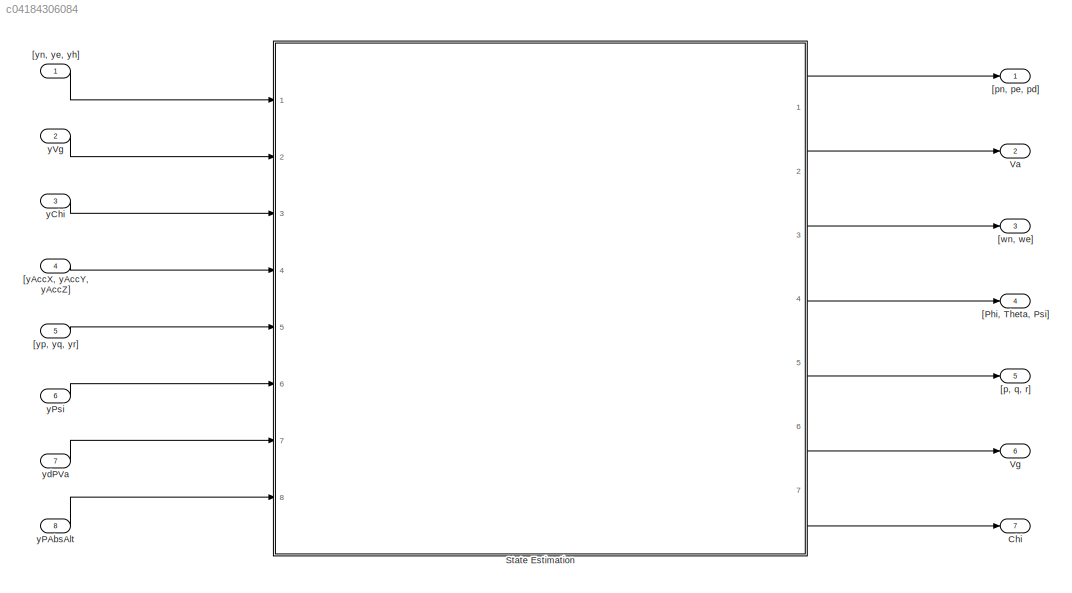
MODEL slx_c04184306084
KIND model
CONFIG AbsTol = auto
CONFIG EnableMultiTasking = off
CONFIG FixedStep = auto
CONFIG MaxStep = auto
CONFIG MinStep = auto
CONFIG RelTol = 1e-3
CONFIG SampleTimeConstraint = Unconstrained
CONFIG Solver = VariableStepAuto
CONFIG SolverName = VariableStepAuto
CONFIG StartTime = 0.0
CONFIG StopTime = 10.0
BLOCK [Outport] Chi
  IconDisplay = Port number
  Port = 7
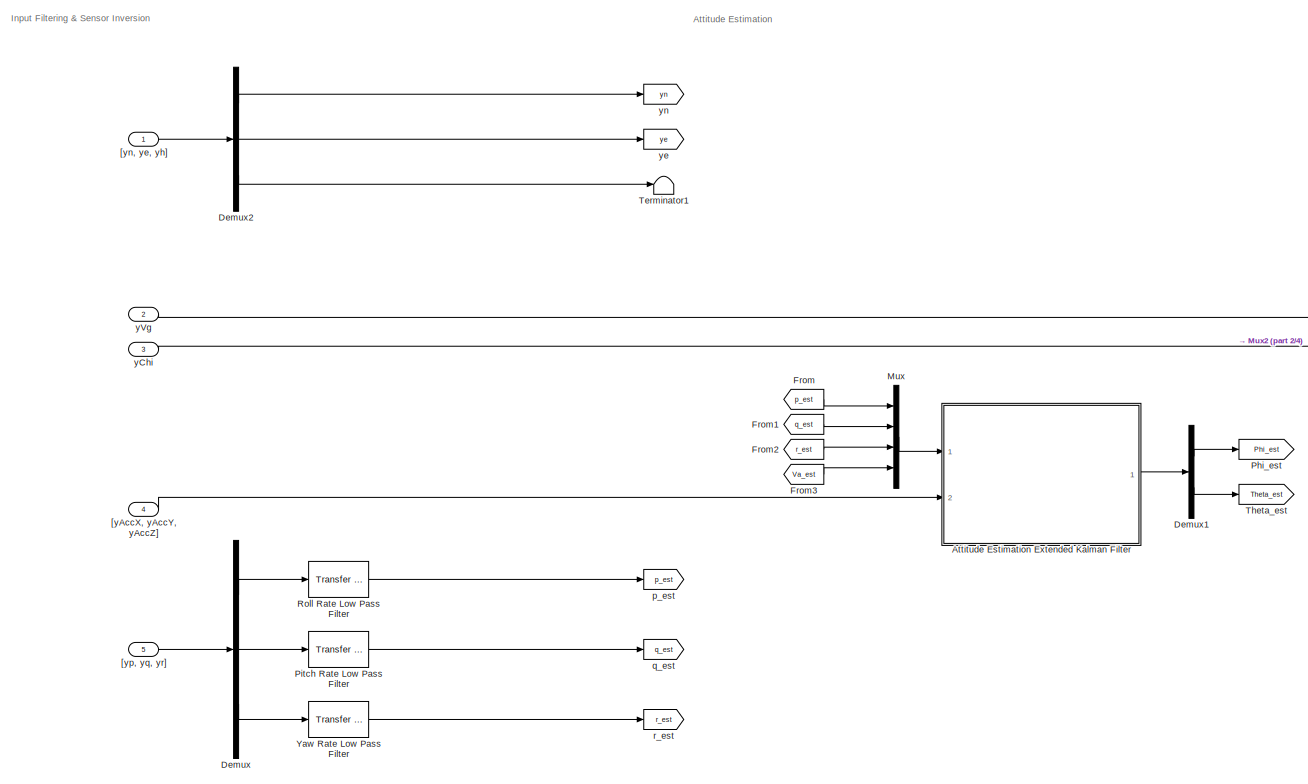
[diagram: State Estimation - part 1/4, top left region]
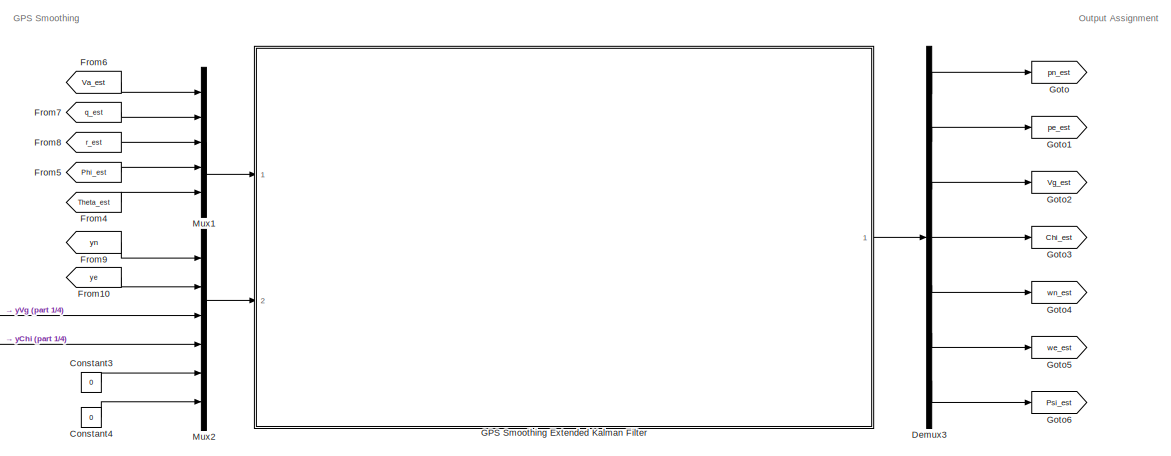
[diagram: State Estimation - part 2/4, top center region]
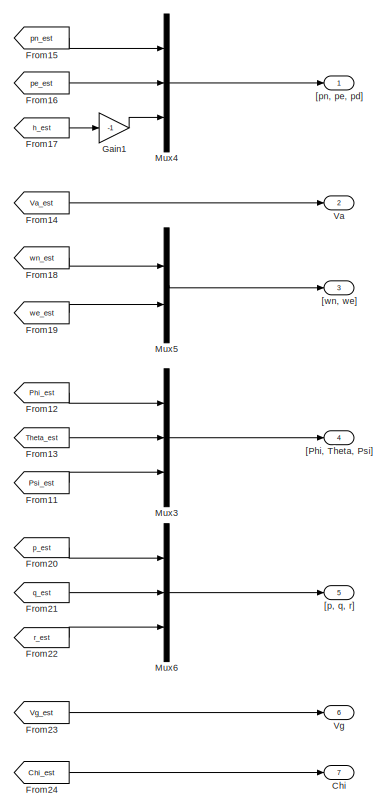
[diagram: State Estimation - part 3/4, middle right region]
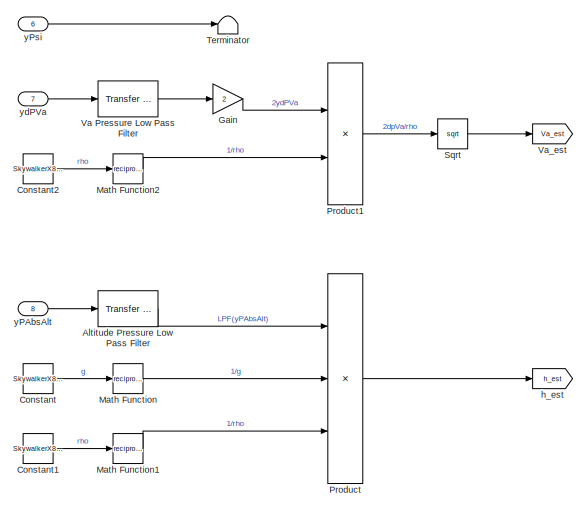
[diagram: State Estimation - part 4/4, bottom left region]
BLOCK [SubSystem] State Estimation
  Ports = [8, 7]
  RequestExecContextInheritance = off
BLOCK [Reference] State Estimation/Altitude Pressure Low Pass Filter  REF=simulink_extras/Additional
Linear/Transfer Fcn
(with initial outputs)
  Ports = [1, 1]
  SourceBlock = simulink_extras/Additional\nLinear/Transfer Fcn\n(with initial outputs)
  SourceProductBaseCode = SL
  SourceProductName = Simulink
  SourceType = Transfer Function with Initial Outputs
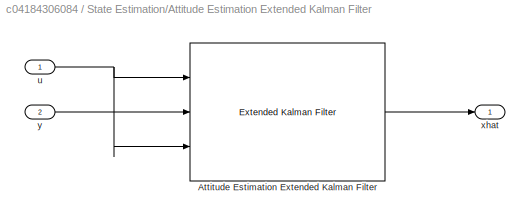
BLOCK [SubSystem] State Estimation/Attitude Estimation Extended Kalman Filter
  Ports = [2, 1]
  RequestExecContextInheritance = off
BLOCK [Reference] State Estimation/Attitude Estimation Extended Kalman Filter/Attitude Estimation Extended Kalman Filter  REF=sharedTrackingLibrary/Extended Kalman Filter
  Ports = [3, 1]
  SourceBlock = sharedTrackingLibrary/Extended Kalman Filter
  SourceProductBaseCode = CT
  SourceProductName = Control System Toolbox
  SourceType = Extended Kalman Filter
BLOCK [Inport] State Estimation/Attitude Estimation Extended Kalman Filter/u
  IconDisplay = Port number
BLOCK [Outport] State Estimation/Attitude Estimation Extended Kalman Filter/xhat
  IconDisplay = Port number
BLOCK [Inport] State Estimation/Attitude Estimation Extended Kalman Filter/y
  IconDisplay = Port number
  Port = 2
BLOCK [Outport] State Estimation/Chi
  IconDisplay = Port number
  Port = 7
BLOCK [Constant] State Estimation/Constant
  Value = SkywalkerX8.Sensors.StateEstimate.SensorInversion.AltitudePressure.Gravity
BLOCK [Constant] State Estimation/Constant1
  Value = SkywalkerX8.Sensors.StateEstimate.SensorInversion.AltitudePressure.Density
BLOCK [Constant] State Estimation/Constant2
  Value = SkywalkerX8.Sensors.StateEstimate.SensorInversion.AltitudePressure.Density
BLOCK [Constant] State Estimation/Constant3
  Value = 0
BLOCK [Constant] State Estimation/Constant4
  Value = 0
BLOCK [Demux] State Estimation/Demux
  DisplayOption = bar
  Outputs = 3
  Ports = [1, 3]
BLOCK [Demux] State Estimation/Demux1
  DisplayOption = bar
  Outputs = 2
  Ports = [1, 2]
BLOCK [Demux] State Estimation/Demux2
  DisplayOption = bar
  Outputs = 3
  Ports = [1, 3]
BLOCK [Demux] State Estimation/Demux3
  DisplayOption = bar
  Outputs = 7
  Ports = [1, 7]
BLOCK [From] State Estimation/From
  GotoTag = p_est
BLOCK [From] State Estimation/From1
  GotoTag = q_est
BLOCK [From] State Estimation/From10
  GotoTag = ye
BLOCK [From] State Estimation/From11
  GotoTag = Psi_est
BLOCK [From] State Estimation/From12
  GotoTag = Phi_est
BLOCK [From] State Estimation/From13
  GotoTag = Theta_est
BLOCK [From] State Estimation/From14
  GotoTag = Va_est
BLOCK [From] State Estimation/From15
  GotoTag = pn_est
BLOCK [From] State Estimation/From16
  GotoTag = pe_est
BLOCK [From] State Estimation/From17
  GotoTag = h_est
BLOCK [From] State Estimation/From18
  GotoTag = wn_est
BLOCK [From] State Estimation/From19
  GotoTag = we_est
BLOCK [From] State Estimation/From2
  GotoTag = r_est
BLOCK [From] State Estimation/From20
  GotoTag = p_est
BLOCK [From] State Estimation/From21
  GotoTag = q_est
BLOCK [From] State Estimation/From22
  GotoTag = r_est
BLOCK [From] State Estimation/From23
  GotoTag = Vg_est
BLOCK [From] State Estimation/From24
  GotoTag = Chi_est
BLOCK [From] State Estimation/From3
  GotoTag = Va_est
BLOCK [From] State Estimation/From4
  GotoTag = Theta_est
BLOCK [From] State Estimation/From5
  GotoTag = Phi_est
BLOCK [From] State Estimation/From6
  GotoTag = Va_est
BLOCK [From] State Estimation/From7
  GotoTag = q_est
BLOCK [From] State Estimation/From8
  GotoTag = r_est
BLOCK [From] State Estimation/From9
  GotoTag = yn
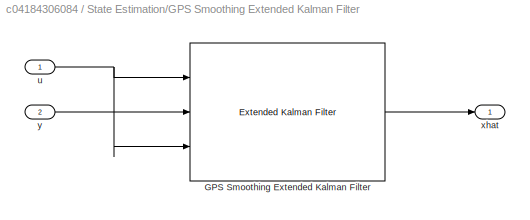
BLOCK [SubSystem] State Estimation/GPS Smoothing Extended Kalman Filter
  Ports = [2, 1]
  RequestExecContextInheritance = off
BLOCK [Reference] State Estimation/GPS Smoothing Extended Kalman Filter/GPS Smoothing Extended Kalman Filter  REF=sharedTrackingLibrary/Extended Kalman Filter
  Ports = [3, 1]
  SourceBlock = sharedTrackingLibrary/Extended Kalman Filter
  SourceProductBaseCode = CT
  SourceProductName = Control System Toolbox
  SourceType = Extended Kalman Filter
BLOCK [Inport] State Estimation/GPS Smoothing Extended Kalman Filter/u
  IconDisplay = Port number
BLOCK [Outport] State Estimation/GPS Smoothing Extended Kalman Filter/xhat
  IconDisplay = Port number
BLOCK [Inport] State Estimation/GPS Smoothing Extended Kalman Filter/y
  IconDisplay = Port number
  Port = 2
BLOCK [Gain] State Estimation/Gain
  Gain = 2
  OutDataTypeStr = Inherit: Inherit via internal rule
  ParamDataTypeStr = Inherit: Inherit via internal rule
  SaturateOnIntegerOverflow = off
BLOCK [Gain] State Estimation/Gain1
  Gain = -1
  OutDataTypeStr = Inherit: Inherit via internal rule
  ParamDataTypeStr = Inherit: Inherit via internal rule
  SaturateOnIntegerOverflow = off
BLOCK [Goto] State Estimation/Goto
  GotoTag = pn_est
BLOCK [Goto] State Estimation/Goto1
  GotoTag = pe_est
BLOCK [Goto] State Estimation/Goto2
  GotoTag = Vg_est
BLOCK [Goto] State Estimation/Goto3
  GotoTag = Chi_est
BLOCK [Goto] State Estimation/Goto4
  GotoTag = wn_est
BLOCK [Goto] State Estimation/Goto5
  GotoTag = we_est
BLOCK [Goto] State Estimation/Goto6
  GotoTag = Psi_est
BLOCK [Math] State Estimation/Math Function
  Operator = reciprocal
  Ports = [1, 1]
BLOCK [Math] State Estimation/Math Function1
  Operator = reciprocal
  Ports = [1, 1]
BLOCK [Math] State Estimation/Math Function2
  Operator = reciprocal
  Ports = [1, 1]
BLOCK [Mux] State Estimation/Mux
  DisplayOption = bar
  Ports = [4, 1]
BLOCK [Mux] State Estimation/Mux1
  DisplayOption = bar
  Inputs = 5
  Ports = [5, 1]
BLOCK [Mux] State Estimation/Mux2
  DisplayOption = bar
  Inputs = 6
  Ports = [6, 1]
BLOCK [Mux] State Estimation/Mux3
  DisplayOption = bar
  Inputs = 3
  Ports = [3, 1]
BLOCK [Mux] State Estimation/Mux4
  DisplayOption = bar
  Inputs = 3
  Ports = [3, 1]
BLOCK [Mux] State Estimation/Mux5
  DisplayOption = bar
  Inputs = 2
  Ports = [2, 1]
BLOCK [Mux] State Estimation/Mux6
  DisplayOption = bar
  Inputs = 3
  Ports = [3, 1]
BLOCK [Goto] State Estimation/Phi_est
  GotoTag = Phi_est
BLOCK [Reference] State Estimation/Pitch Rate Low Pass Filter  REF=simulink_extras/Additional
Linear/Transfer Fcn
(with initial outputs)
  Ports = [1, 1]
  SourceBlock = simulink_extras/Additional\nLinear/Transfer Fcn\n(with initial outputs)
  SourceProductBaseCode = SL
  SourceProductName = Simulink
  SourceType = Transfer Function with Initial Outputs
BLOCK [Product] State Estimation/Product
  InputSameDT = off
  Inputs = 3
  OutDataTypeStr = Inherit: Inherit via internal rule
  Ports = [3, 1]
  RndMeth = Floor
  SaturateOnIntegerOverflow = off
BLOCK [Product] State Estimation/Product1
  InputSameDT = off
  OutDataTypeStr = Inherit: Inherit via internal rule
  Ports = [2, 1]
  RndMeth = Floor
  SaturateOnIntegerOverflow = off
BLOCK [Reference] State Estimation/Roll Rate Low Pass Filter  REF=simulink_extras/Additional
Linear/Transfer Fcn
(with initial outputs)
  Ports = [1, 1]
  SourceBlock = simulink_extras/Additional\nLinear/Transfer Fcn\n(with initial outputs)
  SourceProductBaseCode = SL
  SourceProductName = Simulink
  SourceType = Transfer Function with Initial Outputs
BLOCK [Sqrt] State Estimation/Sqrt
BLOCK [Terminator] State Estimation/Terminator
BLOCK [Terminator] State Estimation/Terminator1
BLOCK [Goto] State Estimation/Theta_est
  GotoTag = Theta_est
BLOCK [Outport] State Estimation/Va
  IconDisplay = Port number
  Port = 2
BLOCK [Reference] State Estimation/Va Pressure Low Pass Filter  REF=simulink_extras/Additional
Linear/Transfer Fcn
(with initial outputs)
  Ports = [1, 1]
  SourceBlock = simulink_extras/Additional\nLinear/Transfer Fcn\n(with initial outputs)
  SourceProductBaseCode = SL
  SourceProductName = Simulink
  SourceType = Transfer Function with Initial Outputs
BLOCK [Goto] State Estimation/Va_est
  GotoTag = Va_est
BLOCK [Outport] State Estimation/Vg
  IconDisplay = Port number
  Port = 6
BLOCK [Reference] State Estimation/Yaw Rate Low Pass Filter  REF=simulink_extras/Additional
Linear/Transfer Fcn
(with initial outputs)
  Ports = [1, 1]
  SourceBlock = simulink_extras/Additional\nLinear/Transfer Fcn\n(with initial outputs)
  SourceProductBaseCode = SL
  SourceProductName = Simulink
  SourceType = Transfer Function with Initial Outputs
BLOCK [Outport] State Estimation/[Phi, Theta, Psi]
  IconDisplay = Port number
  Port = 4
BLOCK [Outport] State Estimation/[p, q, r]
  IconDisplay = Port number
  Port = 5
BLOCK [Outport] State Estimation/[pn, pe, pd]
  IconDisplay = Port number
BLOCK [Outport] State Estimation/[wn, we]
  IconDisplay = Port number
  Port = 3
BLOCK [Inport] State Estimation/[yAccX, yAccY, yAccZ]
  IconDisplay = Port number
  Port = 4
  PortDimensions = 3
BLOCK [Inport] State Estimation/[yn, ye, yh]
  IconDisplay = Port number
  PortDimensions = 3
BLOCK [Inport] State Estimation/[yp, yq, yr]
  IconDisplay = Port number
  Port = 5
  PortDimensions = 3
BLOCK [Goto] State Estimation/h_est
  GotoTag = h_est
BLOCK [Goto] State Estimation/p_est
  GotoTag = p_est
BLOCK [Goto] State Estimation/q_est
  GotoTag = q_est
BLOCK [Goto] State Estimation/r_est
  GotoTag = r_est
BLOCK [Inport] State Estimation/yChi
  IconDisplay = Port number
  Port = 3
  PortDimensions = 3
BLOCK [Inport] State Estimation/yPAbsAlt
  IconDisplay = Port number
  Port = 8
  PortDimensions = 3
BLOCK [Inport] State Estimation/yPsi
  IconDisplay = Port number
  Port = 6
  PortDimensions = 3
BLOCK [Inport] State Estimation/yVg
  IconDisplay = Port number
  Port = 2
  PortDimensions = 3
BLOCK [Inport] State Estimation/ydPVa
  IconDisplay = Port number
  Port = 7
  PortDimensions = 3
BLOCK [Goto] State Estimation/ye
  GotoTag = ye
BLOCK [Goto] State Estimation/yn
  GotoTag = yn
BLOCK [Outport] Va
  IconDisplay = Port number
  Port = 2
BLOCK [Outport] Vg
  IconDisplay = Port number
  Port = 6
BLOCK [Outport] [Phi, Theta, Psi]
  IconDisplay = Port number
  Port = 4
BLOCK [Outport] [p, q, r]
  IconDisplay = Port number
  Port = 5
BLOCK [Outport] [pn, pe, pd]
  IconDisplay = Port number
BLOCK [Outport] [wn, we]
  IconDisplay = Port number
  Port = 3
BLOCK [Inport] [yAccX, yAccY, yAccZ]
  IconDisplay = Port number
  Port = 4
  PortDimensions = 3
BLOCK [Inport] [yn, ye, yh]
  IconDisplay = Port number
  PortDimensions = 3
BLOCK [Inport] [yp, yq, yr]
  IconDisplay = Port number
  Port = 5
  PortDimensions = 3
BLOCK [Inport] yChi
  IconDisplay = Port number
  Port = 3
  PortDimensions = 3
BLOCK [Inport] yPAbsAlt
  IconDisplay = Port number
  Port = 8
  PortDimensions = 3
BLOCK [Inport] yPsi
  IconDisplay = Port number
  Port = 6
  PortDimensions = 3
BLOCK [Inport] yVg
  IconDisplay = Port number
  Port = 2
  PortDimensions = 3
BLOCK [Inport] ydPVa
  IconDisplay = Port number
  Port = 7
  PortDimensions = 3
ANNOTATION State Estimation: Attitude Estimation
ANNOTATION State Estimation: GPS Smoothing
ANNOTATION State Estimation: Input Filtering & Sensor Inversion
ANNOTATION State Estimation: Output Assignment
LINE State Estimation/Altitude Pressure Low Pass Filter:1 -> State Estimation/Product:1
LINE State Estimation/Attitude Estimation Extended Kalman Filter/Attitude Estimation Extended Kalman Filter:1 -> State Estimation/Attitude Estimation Extended Kalman Filter/xhat:1
NET State Estimation/Attitude Estimation Extended Kalman Filter/u:1 -> State Estimation/Attitude Estimation Extended Kalman Filter/Attitude Estimation Extended Kalman Filter:1, State Estimation/Attitude Estimation Extended Kalman Filter/Attitude Estimation Extended Kalman Filter:3
LINE State Estimation/Attitude Estimation Extended Kalman Filter/y:1 -> State Estimation/Attitude Estimation Extended Kalman Filter/Attitude Estimation Extended Kalman Filter:2
LINE State Estimation/Attitude Estimation Extended Kalman Filter:1 -> State Estimation/Demux1:1
LINE State Estimation/Constant1:1 -> State Estimation/Math Function1:1
LINE State Estimation/Constant2:1 -> State Estimation/Math Function2:1
LINE State Estimation/Constant3:1 -> State Estimation/Mux2:5
LINE State Estimation/Constant4:1 -> State Estimation/Mux2:6
LINE State Estimation/Constant:1 -> State Estimation/Math Function:1
LINE State Estimation/Demux1:1 -> State Estimation/Phi_est:1
LINE State Estimation/Demux1:2 -> State Estimation/Theta_est:1
LINE State Estimation/Demux2:1 -> State Estimation/yn:1
LINE State Estimation/Demux2:2 -> State Estimation/ye:1
LINE State Estimation/Demux2:3 -> State Estimation/Terminator1:1
LINE State Estimation/Demux3:1 -> State Estimation/Goto:1
LINE State Estimation/Demux3:2 -> State Estimation/Goto1:1
LINE State Estimation/Demux3:3 -> State Estimation/Goto2:1
LINE State Estimation/Demux3:4 -> State Estimation/Goto3:1
LINE State Estimation/Demux3:5 -> State Estimation/Goto4:1
LINE State Estimation/Demux3:6 -> State Estimation/Goto5:1
LINE State Estimation/Demux3:7 -> State Estimation/Goto6:1
LINE State Estimation/Demux:1 -> State Estimation/Roll Rate Low Pass Filter:1
LINE State Estimation/Demux:2 -> State Estimation/Pitch Rate Low Pass Filter:1
LINE State Estimation/Demux:3 -> State Estimation/Yaw Rate Low Pass Filter:1
LINE State Estimation/From10:1 -> State Estimation/Mux2:2
LINE State Estimation/From11:1 -> State Estimation/Mux3:3
LINE State Estimation/From12:1 -> State Estimation/Mux3:1
LINE State Estimation/From13:1 -> State Estimation/Mux3:2
LINE State Estimation/From14:1 -> State Estimation/Va:1
LINE State Estimation/From15:1 -> State Estimation/Mux4:1
LINE State Estimation/From16:1 -> State Estimation/Mux4:2
LINE State Estimation/From17:1 -> State Estimation/Gain1:1
LINE State Estimation/From18:1 -> State Estimation/Mux5:1
LINE State Estimation/From19:1 -> State Estimation/Mux5:2
LINE State Estimation/From1:1 -> State Estimation/Mux:2
LINE State Estimation/From20:1 -> State Estimation/Mux6:1
LINE State Estimation/From21:1 -> State Estimation/Mux6:2
LINE State Estimation/From22:1 -> State Estimation/Mux6:3
LINE State Estimation/From23:1 -> State Estimation/Vg:1
LINE State Estimation/From24:1 -> State Estimation/Chi:1
LINE State Estimation/From2:1 -> State Estimation/Mux:3
LINE State Estimation/From3:1 -> State Estimation/Mux:4
LINE State Estimation/From4:1 -> State Estimation/Mux1:5
LINE State Estimation/From5:1 -> State Estimation/Mux1:4
LINE State Estimation/From6:1 -> State Estimation/Mux1:1
LINE State Estimation/From7:1 -> State Estimation/Mux1:2
LINE State Estimation/From8:1 -> State Estimation/Mux1:3
LINE State Estimation/From9:1 -> State Estimation/Mux2:1
LINE State Estimation/From:1 -> State Estimation/Mux:1
LINE State Estimation/GPS Smoothing Extended Kalman Filter/GPS Smoothing Extended Kalman Filter:1 -> State Estimation/GPS Smoothing Extended Kalman Filter/xhat:1
NET State Estimation/GPS Smoothing Extended Kalman Filter/u:1 -> State Estimation/GPS Smoothing Extended Kalman Filter/GPS Smoothing Extended Kalman Filter:1, State Estimation/GPS Smoothing Extended Kalman Filter/GPS Smoothing Extended Kalman Filter:3
LINE State Estimation/GPS Smoothing Extended Kalman Filter/y:1 -> State Estimation/GPS Smoothing Extended Kalman Filter/GPS Smoothing Extended Kalman Filter:2
LINE State Estimation/GPS Smoothing Extended Kalman Filter:1 -> State Estimation/Demux3:1
LINE State Estimation/Gain1:1 -> State Estimation/Mux4:3
LINE State Estimation/Gain:1 -> State Estimation/Product1:1
LINE State Estimation/Math Function1:1 -> State Estimation/Product:3
LINE State Estimation/Math Function2:1 -> State Estimation/Product1:2
LINE State Estimation/Math Function:1 -> State Estimation/Product:2
LINE State Estimation/Mux1:1 -> State Estimation/GPS Smoothing Extended Kalman Filter:1
LINE State Estimation/Mux2:1 -> State Estimation/GPS Smoothing Extended Kalman Filter:2
LINE State Estimation/Mux3:1 -> State Estimation/[Phi, Theta, Psi]:1
LINE State Estimation/Mux4:1 -> State Estimation/[pn, pe, pd]:1
LINE State Estimation/Mux5:1 -> State Estimation/[wn, we]:1
LINE State Estimation/Mux6:1 -> State Estimation/[p, q, r]:1
LINE State Estimation/Mux:1 -> State Estimation/Attitude Estimation Extended Kalman Filter:1
LINE State Estimation/Pitch Rate Low Pass Filter:1 -> State Estimation/q_est:1
LINE State Estimation/Product1:1 -> State Estimation/Sqrt:1
LINE State Estimation/Product:1 -> State Estimation/h_est:1
LINE State Estimation/Roll Rate Low Pass Filter:1 -> State Estimation/p_est:1
LINE State Estimation/Sqrt:1 -> State Estimation/Va_est:1
LINE State Estimation/Va Pressure Low Pass Filter:1 -> State Estimation/Gain:1
LINE State Estimation/Yaw Rate Low Pass Filter:1 -> State Estimation/r_est:1
LINE State Estimation/[yAccX, yAccY, yAccZ]:1 -> State Estimation/Attitude Estimation Extended Kalman Filter:2
LINE State Estimation/[yn, ye, yh]:1 -> State Estimation/Demux2:1
LINE State Estimation/[yp, yq, yr]:1 -> State Estimation/Demux:1
LINE State Estimation/yChi:1 -> State Estimation/Mux2:4
LINE State Estimation/yPAbsAlt:1 -> State Estimation/Altitude Pressure Low Pass Filter:1
LINE State Estimation/yPsi:1 -> State Estimation/Terminator:1
LINE State Estimation/yVg:1 -> State Estimation/Mux2:3
LINE State Estimation/ydPVa:1 -> State Estimation/Va Pressure Low Pass Filter:1
LINE State Estimation:1 -> [pn, pe, pd]:1
LINE State Estimation:2 -> Va:1
LINE State Estimation:3 -> [wn, we]:1
LINE State Estimation:4 -> [Phi, Theta, Psi]:1
LINE State Estimation:5 -> [p, q, r]:1
LINE State Estimation:6 -> Vg:1
LINE State Estimation:7 -> Chi:1
LINE [yAccX, yAccY, yAccZ]:1 -> State Estimation:4
LINE [yn, ye, yh]:1 -> State Estimation:1
LINE [yp, yq, yr]:1 -> State Estimation:5
LINE yChi:1 -> State Estimation:3
LINE yPAbsAlt:1 -> State Estimation:8
LINE yPsi:1 -> State Estimation:6
LINE yVg:1 -> State Estimation:2
LINE ydPVa:1 -> State Estimation:7
note: NET lines group one-source signal fan-out (src -> all destinations, sorted); 1:1 wires keep LINE
